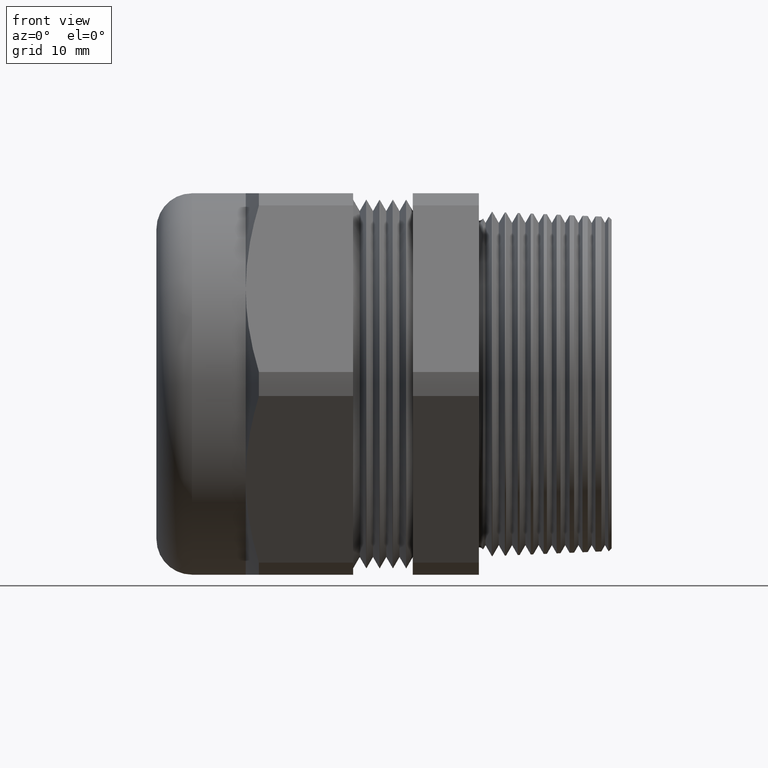
[diagram: clean part render]
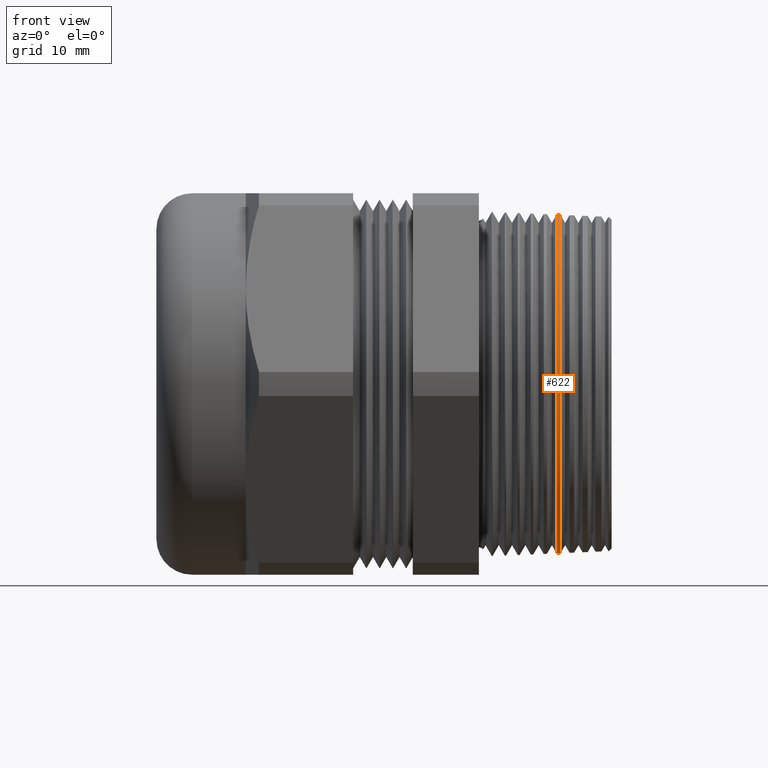
[diagram: same view with one face highlighted and labeled with its STEP entity id]
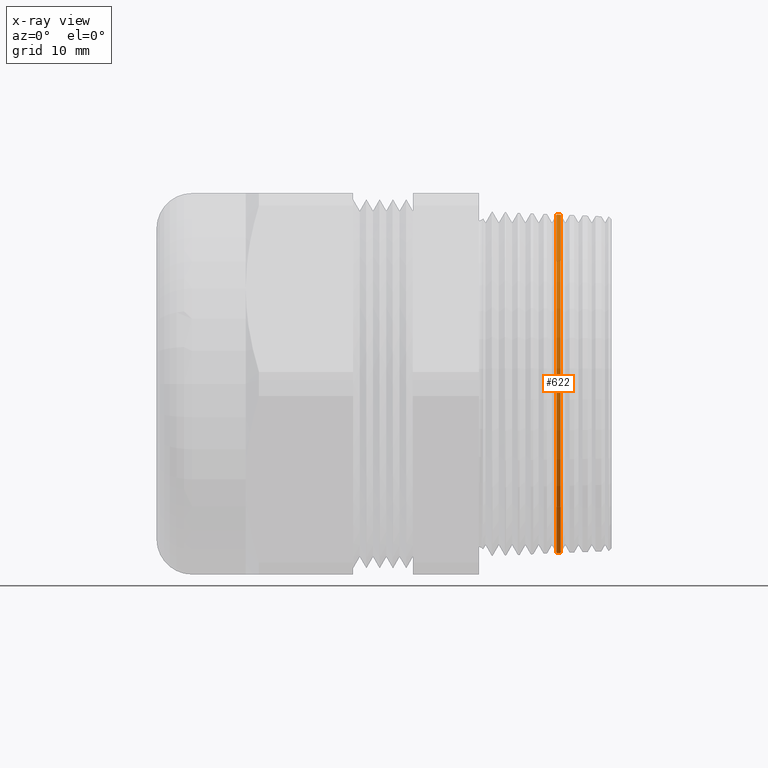
[diagram: x-ray of the same camera — body ghosted, the highlighted face saturated]
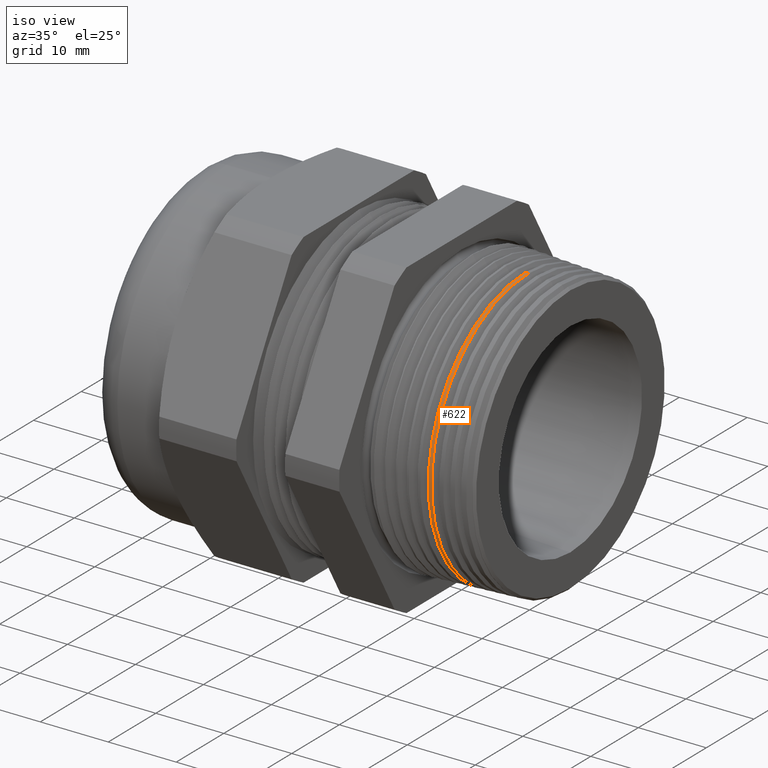
[diagram: same view with one face highlighted and labeled with its STEP entity id]
A machine part, front view. The second image highlights one B-rep face of the part: STEP entity #622.
The next image is the same camera in x-ray: the body ghosted, the highlighted face saturated — about 0% of this face is hidden behind the body in this view.
A second angle (iso view) of the same face is appended — the face is thin or edge-on in the first view.
In plain terms, the highlighted conical surface has half-angle 2.5 deg.
Its self-contained STEP definition (entity closure, byte-faithful):
#366 = VERTEX_POINT ( 'NONE', #1373 ) ;
#367 = VERTEX_POINT ( 'NONE', #1372 ) ;
#399 = VERTEX_POINT ( 'NONE', #1450 ) ;
#620 = EDGE_LOOP ( 'NONE', ( #652, #659, #665, #663 ) ) ;
#622 = ADVANCED_FACE ( 'NONE', ( #1915 ), #1912, .T. ) ;
#646 = EDGE_CURVE ( 'NONE', #366, #367, #1929, .T. ) ;
#652 = ORIENTED_EDGE ( 'NONE', *, *, #3976, .F. ) ;
#656 = EDGE_CURVE ( 'NONE', #399, #3529, #1964, .T. ) ;
#659 = ORIENTED_EDGE ( 'NONE', *, *, #656, .F. ) ;
#663 = ORIENTED_EDGE ( 'NONE', *, *, #646, .F. ) ;
#665 = ORIENTED_EDGE ( 'NONE', *, *, #3937, .T. ) ;
#1372 = CARTESIAN_POINT ( 'NONE',  ( 0.3693533222417858500, 0.0000000000000000000, 0.8038736856845319900 ) ) ;
#1373 = CARTESIAN_POINT ( 'NONE',  ( 0.3693533222417858500, 9.844613360923475600E-017, -0.8038736856845319900 ) ) ;
#1450 = CARTESIAN_POINT ( 'NONE',  ( 0.3877748966425697600, 0.0000000000000000000, 0.8030693823763344100 ) ) ;
#1909 = DIRECTION ( 'NONE',  ( 0.0000000000000000000, 0.0000000000000000000, 1.000000000000000000 ) ) ;
#1910 = DIRECTION ( 'NONE',  ( -1.000000000000000000, 0.0000000000000000000, 0.0000000000000000000 ) ) ;
#1911 = AXIS2_PLACEMENT_3D ( 'NONE', #1914, #1910, #1909 ) ;
#1912 = CONICAL_SURFACE ( 'NONE', #1911, 0.7924936059676371800, 0.04363323129985850800 ) ;
#1914 = CARTESIAN_POINT ( 'NONE',  ( 0.6299999999999997800, 0.0000000000000000000, 0.0000000000000000000 ) ) ;
#1915 = FACE_OUTER_BOUND ( 'NONE', #620, .T. ) ;
#1921 = DIRECTION ( 'NONE',  ( 0.0000000000000000000, 0.0000000000000000000, -1.000000000000000000 ) ) ;
#1922 = DIRECTION ( 'NONE',  ( -1.000000000000000000, 0.0000000000000000000, 0.0000000000000000000 ) ) ;
#1923 = CARTESIAN_POINT ( 'NONE',  ( 0.3693533222417858500, 0.0000000000000000000, 0.0000000000000000000 ) ) ;
#1924 = AXIS2_PLACEMENT_3D ( 'NONE', #1923, #1922, #1921 ) ;
#1929 = CIRCLE ( 'NONE', #1924, 0.8038736856845319900 ) ;
#1960 = DIRECTION ( 'NONE',  ( 0.0000000000000000000, 0.0000000000000000000, 1.000000000000000000 ) ) ;
#1961 = DIRECTION ( 'NONE',  ( 1.000000000000000000, 0.0000000000000000000, 0.0000000000000000000 ) ) ;
#1962 = CARTESIAN_POINT ( 'NONE',  ( 0.3877748966425697600, 0.0000000000000000000, 0.0000000000000000000 ) ) ;
#1963 = AXIS2_PLACEMENT_3D ( 'NONE', #1962, #1961, #1960 ) ;
#1964 = CIRCLE ( 'NONE', #1963, 0.8030693823763344100 ) ;
#2339 = CARTESIAN_POINT ( 'NONE',  ( 0.3877748966425697600, 9.839688423563836600E-017, -0.8030693823763344100 ) ) ;
#3092 = DIRECTION ( 'NONE',  ( -0.9990482215818576900, 0.0000000000000000000, 0.04361938736533627100 ) ) ;
#3093 = VECTOR ( 'NONE', #3092, 39.37007874015748100 ) ;
#3094 = CARTESIAN_POINT ( 'NONE',  ( 0.6299999999999997800, 0.0000000000000000000, 0.7924936059676371800 ) ) ;
#3100 = LINE ( 'NONE', #3094, #3093 ) ;
#3164 = DIRECTION ( 'NONE',  ( -0.9990482215818576900, 5.341834311772756400E-018, -0.04361938736533627100 ) ) ;
#3165 = VECTOR ( 'NONE', #3164, 39.37007874015748100 ) ;
#3166 = CARTESIAN_POINT ( 'NONE',  ( 0.6299999999999997800, 9.705247578930107000E-017, -0.7924936059676371800 ) ) ;
#3167 = LINE ( 'NONE', #3166, #3165 ) ;
#3529 = VERTEX_POINT ( 'NONE', #2339 ) ;
#3937 = EDGE_CURVE ( 'NONE', #399, #367, #3100, .T. ) ;
#3976 = EDGE_CURVE ( 'NONE', #3529, #366, #3167, .T. ) ;